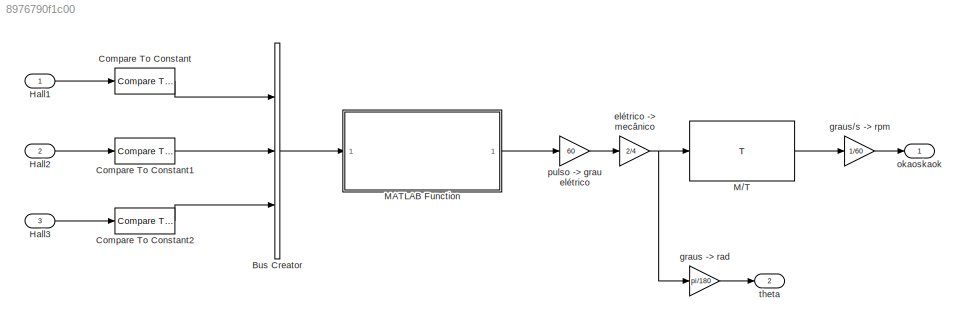
MODEL slx_8976790f1c00
KIND model
BLOCK [BusCreator] Bus Creator
  DisplayOption = bar
  Inputs = 3
  Ports = [3, 1]
BLOCK [Reference] Compare To Constant  REF=simulink/Logic and Bit
Operations/Compare
To Constant
  OutDataTypeStr = uint8
  Ports = [1, 1]
  SourceBlock = simulink/Logic and Bit\nOperations/Compare\nTo Constant
  SourceType = Compare To Constant
  ZeroCross = on
  const = 1.66
  relop = >=
BLOCK [Reference] Compare To Constant1  REF=simulink/Logic and Bit
Operations/Compare
To Constant
  OutDataTypeStr = uint8
  Ports = [1, 1]
  SourceBlock = simulink/Logic and Bit\nOperations/Compare\nTo Constant
  SourceType = Compare To Constant
  ZeroCross = on
  const = 1.66
  relop = >=
BLOCK [Reference] Compare To Constant2  REF=simulink/Logic and Bit
Operations/Compare
To Constant
  OutDataTypeStr = uint8
  Ports = [1, 1]
  SourceBlock = simulink/Logic and Bit\nOperations/Compare\nTo Constant
  SourceType = Compare To Constant
  ZeroCross = on
  const = 1.66
  relop = >=
BLOCK [Inport] Hall1
  IconDisplay = Port number
BLOCK [Inport] Hall2
  IconDisplay = Port number
  Port = 2
BLOCK [Inport] Hall3
  IconDisplay = Port number
  Port = 3
BLOCK [Reference] M//T  REF=Encoder/M//T
  Ports = [1, 1]
  SourceBlock = Encoder/M//T
  Ts = 0.01
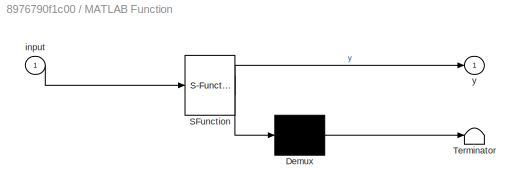
BLOCK [SubSystem] MATLAB Function
  ErrorFcn = Stateflow.Translate.translate
  FunctionWithSeparateData = off
  MaskHideContents = off
  MinAlgLoopOccurrences = off
  Opaque = off
  PermitHierarchicalResolution = ExplicitOnly
  Ports = [1, 1]
  PropExecContextOutsideSubsystem = off
  RTWSystemCode = Auto
  RequestExecContextInheritance = off
  SFBlockType = MATLAB Function
  TreatAsAtomicUnit = on
BLOCK [Demux] MATLAB Function/ Demux 
  Outputs = 1
  Ports = [1, 1]
BLOCK [S-Function] MATLAB Function/ SFunction 
  EnableBusSupport = on
  FunctionName = sf_sfun
  PortCounts = [1 2]
  Ports = [1, 2]
  Tag = Stateflow S-Function calcula_velocidade 2
BLOCK [Terminator] MATLAB Function/ Terminator 
BLOCK [Inport] MATLAB Function/input
  IconDisplay = Port number
BLOCK [Outport] MATLAB Function/y
  IconDisplay = Port number
BLOCK [Gain] elétrico -> mecânico
  Gain = 2/4
  OutDataTypeStr = Inherit: Inherit via internal rule
  ParamDataTypeStr = Inherit: Inherit via internal rule
  SaturateOnIntegerOverflow = off
BLOCK [Gain] graus -> rad
  Gain = pi/180
  OutDataTypeStr = Inherit: Inherit via internal rule
  ParamDataTypeStr = Inherit: Inherit via internal rule
  SaturateOnIntegerOverflow = off
BLOCK [Gain] graus//s -> rpm
  Gain = 1/60
  OutDataTypeStr = Inherit: Inherit via internal rule
  ParamDataTypeStr = Inherit: Inherit via internal rule
  SaturateOnIntegerOverflow = off
BLOCK [Outport] okaoskaok
  IconDisplay = Port number
BLOCK [Gain] pulso -> grau elétrico
  Gain = 60
  OutDataTypeStr = Inherit: Inherit via internal rule
  ParamDataTypeStr = Inherit: Inherit via internal rule
  SaturateOnIntegerOverflow = off
BLOCK [Outport] theta
  IconDisplay = Port number
  Port = 2
LINE Bus Creator:1 -> MATLAB Function:1
LINE Compare To Constant1:1 -> Bus Creator:2
LINE Compare To Constant2:1 -> Bus Creator:3
LINE Compare To Constant:1 -> Bus Creator:1
LINE Hall1:1 -> Compare To Constant:1
LINE Hall2:1 -> Compare To Constant1:1
LINE Hall3:1 -> Compare To Constant2:1
LINE M//T:1 -> graus//s -> rpm:1
LINE MATLAB Function:1 -> pulso -> grau elétrico:1
NET elétrico -> mecânico:1 -> M//T:1, graus -> rad:1
LINE graus -> rad:1 -> theta:1
LINE graus//s -> rpm:1 -> okaoskaok:1
LINE pulso -> grau elétrico:1 -> elétrico -> mecânico:1
note: NET lines group one-source signal fan-out (src -> all destinations, sorted); 1:1 wires keep LINE
